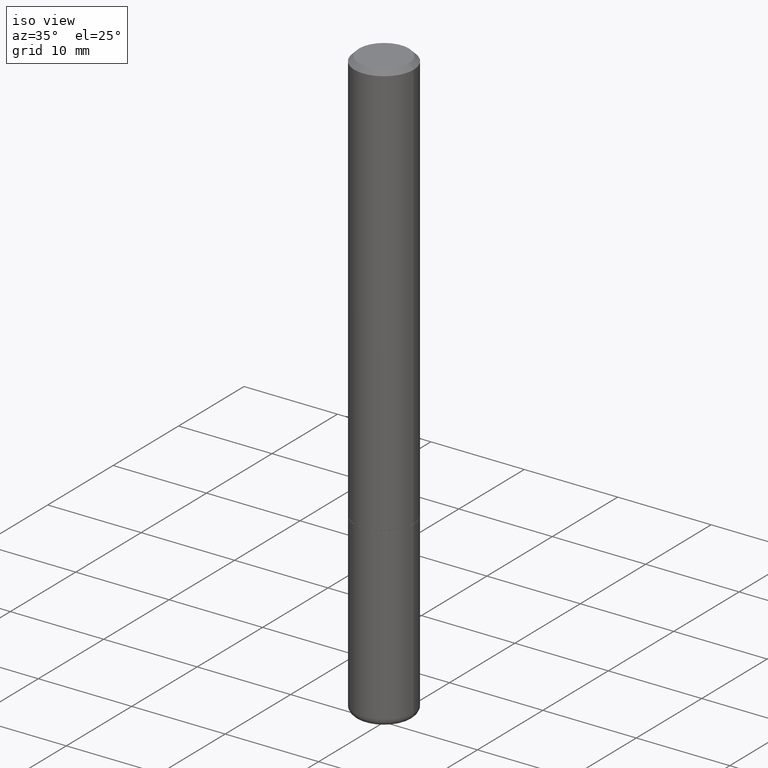
[diagram: clean part render]
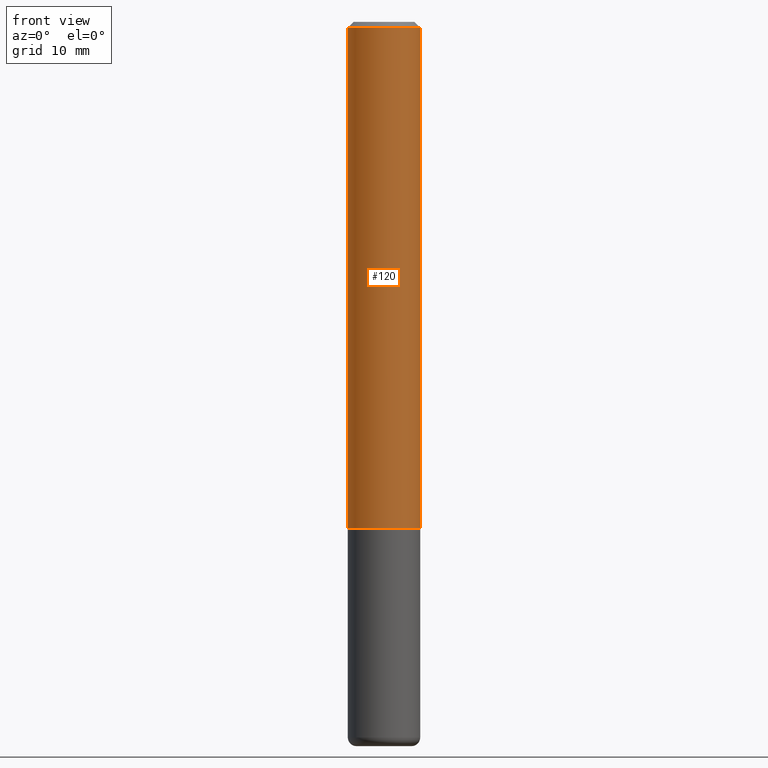
[diagram: tour spotlight — one face highlighted and labeled with its STEP entity id]
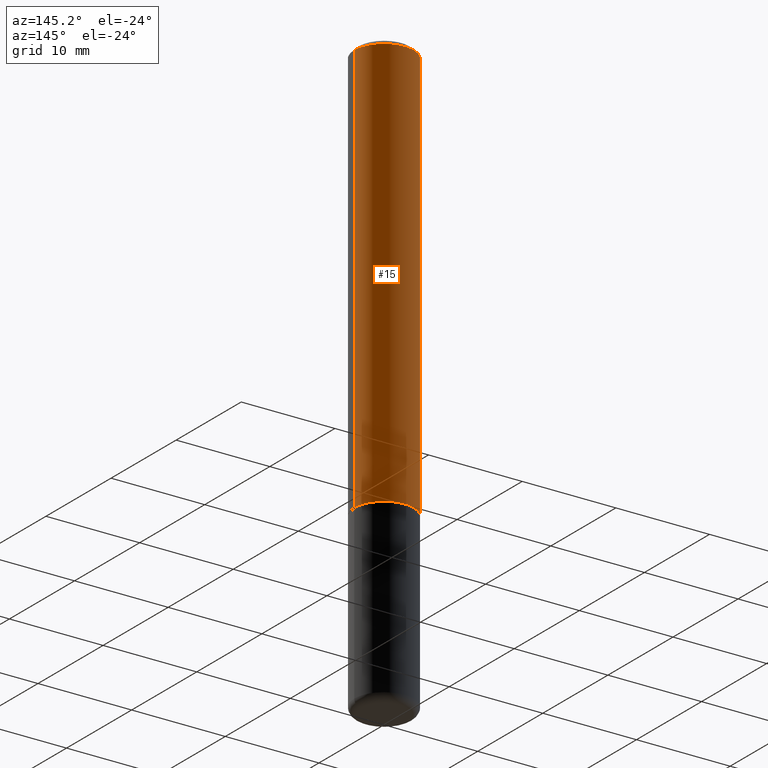
[diagram: tour spotlight — one face highlighted and labeled with its STEP entity id]
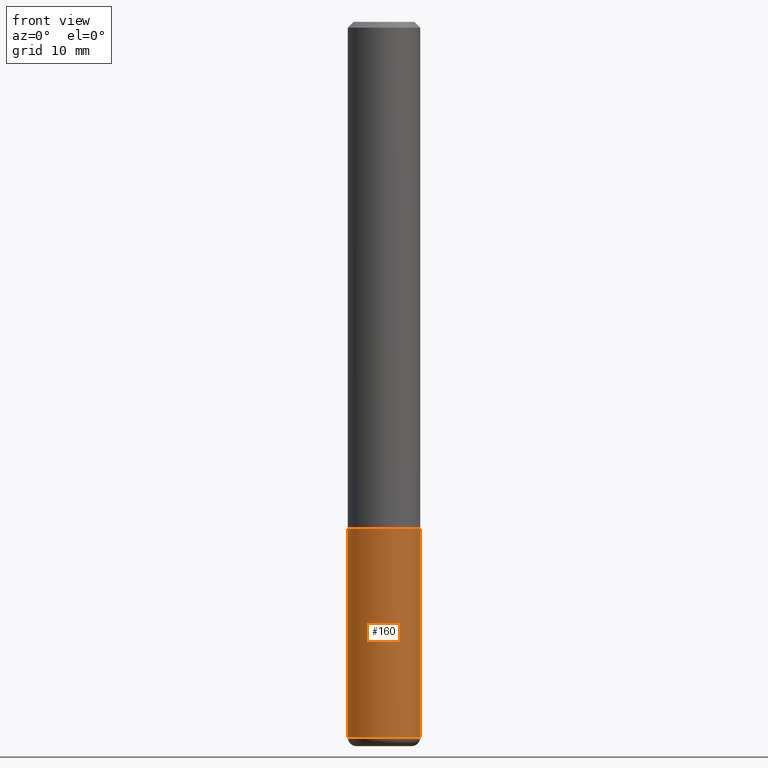
[diagram: tour spotlight — one face highlighted and labeled with its STEP entity id]
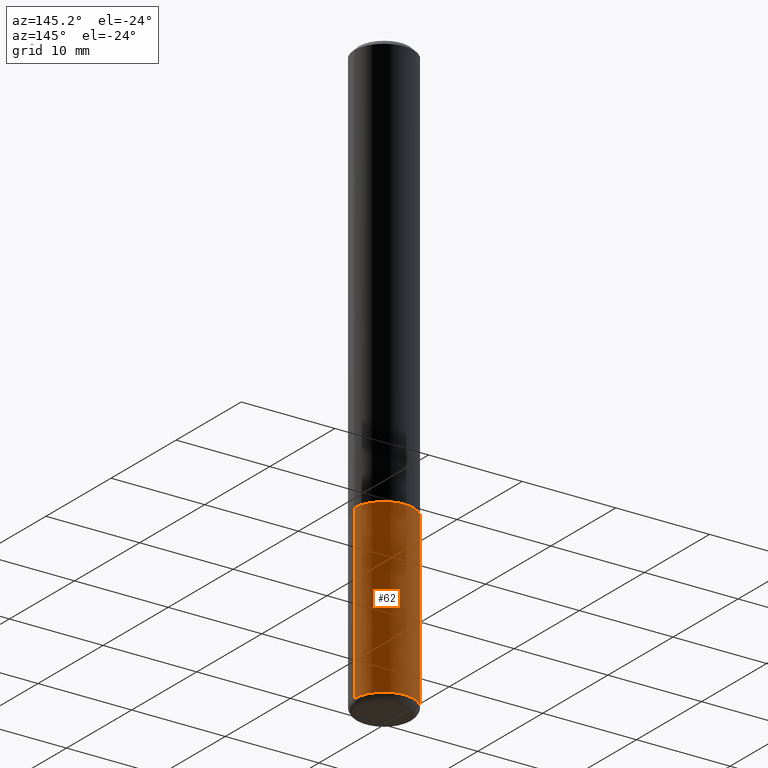
[diagram: tour spotlight — one face highlighted and labeled with its STEP entity id]
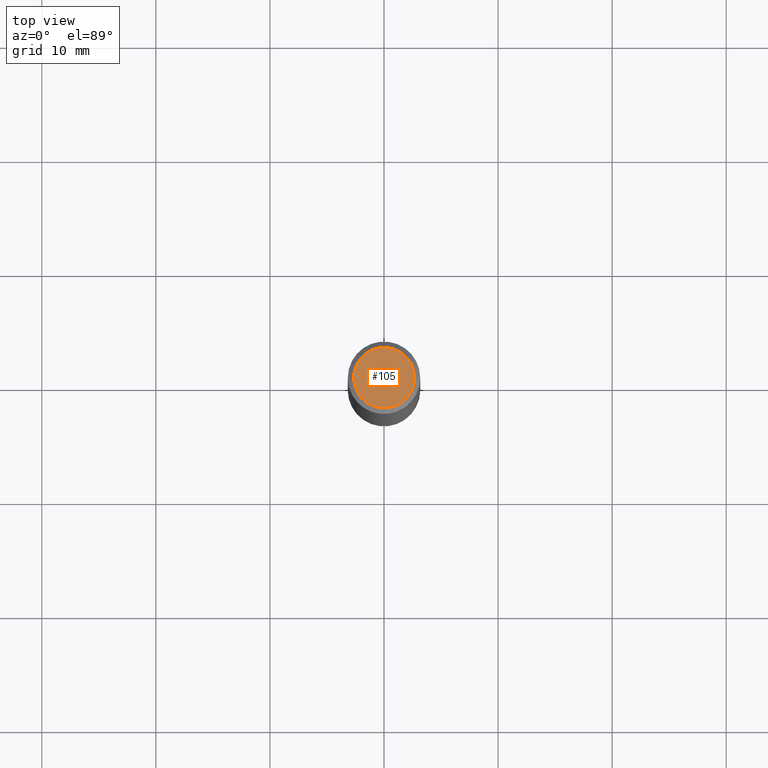
[diagram: tour spotlight — one face highlighted and labeled with its STEP entity id]
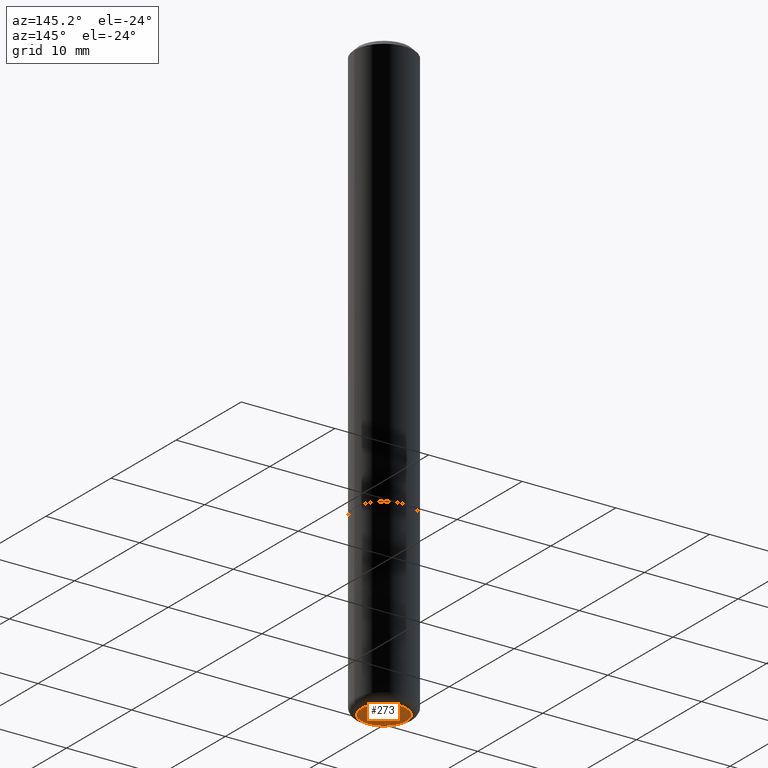
[diagram: tour spotlight — one face highlighted and labeled with its STEP entity id]
A machine part: a face-by-face anatomy tour. The part has 14 B-rep faces; the first image is the clean iso view, then the 6 largest visible faces are spotlighted one at a time (largest first), each with its STEP entity span.

Face 1 — front view, entity #120. In plain terms, the highlighted cylindrical surface (edge-blend (fillet) strip) has radius 3.175 mm, axis along (-0, 0, 1).
Definition (entity closure, byte-faithful):
#12 = LINE ( 'NONE', #378, #349 ) ;
#25 = CARTESIAN_POINT ( 'NONE',  ( 4.277124942017804562E-29, -6.106600861636661664E-15, -1.749000000000000110 ) ) ;
#58 = CARTESIAN_POINT ( 'NONE',  ( 4.890937612370288923E-31, -6.982962677686312563E-17, -0.02000000000000006287 ) ) ;
#59 = CARTESIAN_POINT ( 'NONE',  ( -0.1250000000000001943, -2.200036824506633304E-15, -1.749000000000000110 ) ) ;
#66 = EDGE_CURVE ( 'NONE', #366, #265, #394, .T. ) ;
#72 = CARTESIAN_POINT ( 'NONE',  ( 0.1250000000000000555, -8.728703347107838319E-16, 6.095220969744923244E-30 ) ) ;
#85 = CYLINDRICAL_SURFACE ( 'NONE', #180, 0.1250000000000000555 ) ;
#89 = CARTESIAN_POINT ( 'NONE',  ( 0.1250000000000001943, -6.979471196347446580E-15, -1.749000000000000110 ) ) ;
#99 = EDGE_CURVE ( 'NONE', #139, #366, #12, .T. ) ;
#115 = DIRECTION ( 'NONE',  ( -2.445468806185136877E-29, 3.491481338843145188E-15, 1.000000000000000000 ) ) ;
#120 = ADVANCED_FACE ( 'NONE', ( #281 ), #85, .T. ) ;
#137 = EDGE_LOOP ( 'NONE', ( #165, #335, #307, #158 ) ) ;
#139 = VERTEX_POINT ( 'NONE', #59 ) ;
#150 = DIRECTION ( 'NONE',  ( 1.000000000000000000, -6.982962677686267499E-15, 0.000000000000000000 ) ) ;
#154 = DIRECTION ( 'NONE',  ( -2.445468806185136597E-29, 3.491481338843145583E-15, 1.000000000000000000 ) ) ;
#158 = ORIENTED_EDGE ( 'NONE', *, *, #66, .F. ) ;
#165 = ORIENTED_EDGE ( 'NONE', *, *, #99, .F. ) ;
#179 = EDGE_CURVE ( 'NONE', #139, #381, #318, .T. ) ;
#180 = AXIS2_PLACEMENT_3D ( 'NONE', #338, #412, #279 ) ;
#188 = DIRECTION ( 'NONE',  ( -2.445468806185136877E-29, 3.491481338843145188E-15, 1.000000000000000000 ) ) ;
#200 = LINE ( 'NONE', #72, #277 ) ;
#213 = DIRECTION ( 'NONE',  ( 1.000000000000000000, -6.982962677686267499E-15, 0.000000000000000000 ) ) ;
#225 = AXIS2_PLACEMENT_3D ( 'NONE', #58, #372, #150 ) ;
#234 = EDGE_CURVE ( 'NONE', #381, #265, #200, .T. ) ;
#248 = CARTESIAN_POINT ( 'NONE',  ( 0.1249999999999999584, -9.273918764983043491E-16, -0.02000000000000006287 ) ) ;
#265 = VERTEX_POINT ( 'NONE', #248 ) ;
#277 = VECTOR ( 'NONE', #115, 39.37007874015748143 ) ;
#279 = DIRECTION ( 'NONE',  ( 1.000000000000000000, -6.982962677686267499E-15, 4.876176775795936353E-29 ) ) ;
#281 = FACE_OUTER_BOUND ( 'NONE', #137, .T. ) ;
#307 = ORIENTED_EDGE ( 'NONE', *, *, #234, .T. ) ;
#318 = CIRCLE ( 'NONE', #371, 0.1250000000000001943 ) ;
#335 = ORIENTED_EDGE ( 'NONE', *, *, #179, .T. ) ;
#338 = CARTESIAN_POINT ( 'NONE',  ( 0.000000000000000000, 0.000000000000000000, 0.000000000000000000 ) ) ;
#349 = VECTOR ( 'NONE', #188, 39.37007874015748143 ) ;
#366 = VERTEX_POINT ( 'NONE', #407 ) ;
#371 = AXIS2_PLACEMENT_3D ( 'NONE', #25, #154, #213 ) ;
#372 = DIRECTION ( 'NONE',  ( -2.445468806185136597E-29, 3.491481338843145583E-15, 1.000000000000000000 ) ) ;
#378 = CARTESIAN_POINT ( 'NONE',  ( -0.1250000000000000555, 8.881784197001256268E-16, -6.148668862818635730E-30 ) ) ;
#381 = VERTEX_POINT ( 'NONE', #89 ) ;
#394 = CIRCLE ( 'NONE', #225, 0.1249999999999999584 ) ;
#407 = CARTESIAN_POINT ( 'NONE',  ( -0.1249999999999999584, 8.030407079339200406E-16, -0.02000000000000006287 ) ) ;
#412 = DIRECTION ( 'NONE',  ( -2.445468806185136597E-29, 3.491481338843145583E-15, 1.000000000000000000 ) ) ;

Face 2 — auxiliary view, entity #15. In plain terms, the highlighted cylindrical surface (edge-blend (fillet) strip) has radius 3.175 mm, axis along (-0, 0, 1).
Definition (entity closure, byte-faithful):
#12 = LINE ( 'NONE', #378, #349 ) ;
#15 = ADVANCED_FACE ( 'NONE', ( #76 ), #238, .T. ) ;
#59 = CARTESIAN_POINT ( 'NONE',  ( -0.1250000000000001943, -2.200036824506633304E-15, -1.749000000000000110 ) ) ;
#63 = EDGE_CURVE ( 'NONE', #381, #139, #113, .T. ) ;
#72 = CARTESIAN_POINT ( 'NONE',  ( 0.1250000000000000555, -8.728703347107838319E-16, 6.095220969744923244E-30 ) ) ;
#74 = ORIENTED_EDGE ( 'NONE', *, *, #99, .T. ) ;
#76 = FACE_OUTER_BOUND ( 'NONE', #193, .T. ) ;
#86 = DIRECTION ( 'NONE',  ( 1.000000000000000000, -6.982962677686267499E-15, 0.000000000000000000 ) ) ;
#89 = CARTESIAN_POINT ( 'NONE',  ( 0.1250000000000001943, -6.979471196347446580E-15, -1.749000000000000110 ) ) ;
#93 = CARTESIAN_POINT ( 'NONE',  ( 4.890937612370288923E-31, -6.982962677686312563E-17, -0.02000000000000006287 ) ) ;
#99 = EDGE_CURVE ( 'NONE', #139, #366, #12, .T. ) ;
#107 = AXIS2_PLACEMENT_3D ( 'NONE', #93, #190, #282 ) ;
#113 = CIRCLE ( 'NONE', #245, 0.1250000000000001943 ) ;
#115 = DIRECTION ( 'NONE',  ( -2.445468806185136877E-29, 3.491481338843145188E-15, 1.000000000000000000 ) ) ;
#118 = CARTESIAN_POINT ( 'NONE',  ( 4.277124942017804562E-29, -6.106600861636661664E-15, -1.749000000000000110 ) ) ;
#133 = ORIENTED_EDGE ( 'NONE', *, *, #234, .F. ) ;
#139 = VERTEX_POINT ( 'NONE', #59 ) ;
#169 = ORIENTED_EDGE ( 'NONE', *, *, #355, .F. ) ;
#188 = DIRECTION ( 'NONE',  ( -2.445468806185136877E-29, 3.491481338843145188E-15, 1.000000000000000000 ) ) ;
#190 = DIRECTION ( 'NONE',  ( -2.445468806185136597E-29, 3.491481338843145583E-15, 1.000000000000000000 ) ) ;
#193 = EDGE_LOOP ( 'NONE', ( #362, #74, #169, #133 ) ) ;
#200 = LINE ( 'NONE', #72, #277 ) ;
#204 = DIRECTION ( 'NONE',  ( -2.445468806185136597E-29, 3.491481338843145583E-15, 1.000000000000000000 ) ) ;
#221 = DIRECTION ( 'NONE',  ( -2.445468806185136597E-29, 3.491481338843145583E-15, 1.000000000000000000 ) ) ;
#234 = EDGE_CURVE ( 'NONE', #381, #265, #200, .T. ) ;
#238 = CYLINDRICAL_SURFACE ( 'NONE', #363, 0.1250000000000000555 ) ;
#245 = AXIS2_PLACEMENT_3D ( 'NONE', #118, #221, #86 ) ;
#248 = CARTESIAN_POINT ( 'NONE',  ( 0.1249999999999999584, -9.273918764983043491E-16, -0.02000000000000006287 ) ) ;
#265 = VERTEX_POINT ( 'NONE', #248 ) ;
#268 = DIRECTION ( 'NONE',  ( 1.000000000000000000, -6.982962677686267499E-15, 4.876176775795936353E-29 ) ) ;
#275 = CARTESIAN_POINT ( 'NONE',  ( 0.000000000000000000, 0.000000000000000000, 0.000000000000000000 ) ) ;
#277 = VECTOR ( 'NONE', #115, 39.37007874015748143 ) ;
#282 = DIRECTION ( 'NONE',  ( 1.000000000000000000, -6.982962677686267499E-15, 0.000000000000000000 ) ) ;
#291 = CIRCLE ( 'NONE', #107, 0.1249999999999999584 ) ;
#349 = VECTOR ( 'NONE', #188, 39.37007874015748143 ) ;
#355 = EDGE_CURVE ( 'NONE', #265, #366, #291, .T. ) ;
#362 = ORIENTED_EDGE ( 'NONE', *, *, #63, .T. ) ;
#363 = AXIS2_PLACEMENT_3D ( 'NONE', #275, #204, #268 ) ;
#366 = VERTEX_POINT ( 'NONE', #407 ) ;
#378 = CARTESIAN_POINT ( 'NONE',  ( -0.1250000000000000555, 8.881784197001256268E-16, -6.148668862818635730E-30 ) ) ;
#381 = VERTEX_POINT ( 'NONE', #89 ) ;
#407 = CARTESIAN_POINT ( 'NONE',  ( -0.1249999999999999584, 8.030407079339200406E-16, -0.02000000000000006287 ) ) ;

Face 3 — front view, entity #160. In plain terms, the highlighted cylindrical surface (edge-blend (fillet) strip) has radius 3.175 mm, axis along (-0, 0, 1).
Definition (entity closure, byte-faithful):
#10 = EDGE_LOOP ( 'NONE', ( #18, #191, #299, #162 ) ) ;
#13 = CIRCLE ( 'NONE', #297, 0.1250000000000000000 ) ;
#18 = ORIENTED_EDGE ( 'NONE', *, *, #352, .F. ) ;
#21 = DIRECTION ( 'NONE',  ( 1.000000000000000000, -6.982962677686266711E-15, 4.876176775795935793E-29 ) ) ;
#27 = DIRECTION ( 'NONE',  ( 1.000000000000000000, -6.982962677686270655E-15, 0.000000000000000000 ) ) ;
#28 = CARTESIAN_POINT ( 'NONE',  ( 0.1250000000000000000, -6.982962677686288010E-15, -1.750000000000000222 ) ) ;
#30 = DIRECTION ( 'NONE',  ( -2.445468806185136597E-29, 3.491481338843145583E-15, 1.000000000000000000 ) ) ;
#44 = CIRCLE ( 'NONE', #397, 0.1250000000000000000 ) ;
#50 = VECTOR ( 'NONE', #300, 39.37007874015748143 ) ;
#57 = VECTOR ( 'NONE', #351, 39.37007874015748143 ) ;
#67 = VERTEX_POINT ( 'NONE', #223 ) ;
#68 = AXIS2_PLACEMENT_3D ( 'NONE', #222, #214, #21 ) ;
#103 = CARTESIAN_POINT ( 'NONE',  ( -0.1250000000000000000, -6.478847205258913284E-15, -1.750000000000000222 ) ) ;
#131 = EDGE_CURVE ( 'NONE', #236, #197, #13, .T. ) ;
#160 = ADVANCED_FACE ( 'NONE', ( #310 ), #255, .T. ) ;
#162 = ORIENTED_EDGE ( 'NONE', *, *, #131, .F. ) ;
#185 = CARTESIAN_POINT ( 'NONE',  ( 4.279570410823989044E-29, -6.110092342975505460E-15, -1.750000000000000222 ) ) ;
#186 = LINE ( 'NONE', #383, #57 ) ;
#191 = ORIENTED_EDGE ( 'NONE', *, *, #401, .T. ) ;
#197 = VERTEX_POINT ( 'NONE', #28 ) ;
#214 = DIRECTION ( 'NONE',  ( -2.445468806185136597E-29, 3.491481338843145583E-15, 1.000000000000000000 ) ) ;
#222 = CARTESIAN_POINT ( 'NONE',  ( 0.000000000000000000, 0.000000000000000000, 0.000000000000000000 ) ) ;
#223 = CARTESIAN_POINT ( 'NONE',  ( -0.1249999999999999861, -7.735780487242444763E-15, -2.470000000000000195 ) ) ;
#236 = VERTEX_POINT ( 'NONE', #103 ) ;
#255 = CYLINDRICAL_SURFACE ( 'NONE', #68, 0.1250000000000000000 ) ;
#266 = CARTESIAN_POINT ( 'NONE',  ( 0.1250000000000000000, -8.728703347107833388E-16, 6.095220969744919741E-30 ) ) ;
#284 = EDGE_CURVE ( 'NONE', #398, #197, #339, .T. ) ;
#297 = AXIS2_PLACEMENT_3D ( 'NONE', #185, #319, #379 ) ;
#299 = ORIENTED_EDGE ( 'NONE', *, *, #284, .T. ) ;
#300 = DIRECTION ( 'NONE',  ( -2.445468806185136877E-29, 3.491481338843145188E-15, 1.000000000000000000 ) ) ;
#310 = FACE_OUTER_BOUND ( 'NONE', #10, .T. ) ;
#319 = DIRECTION ( 'NONE',  ( -2.445468806185136597E-29, 3.491481338843145583E-15, 1.000000000000000000 ) ) ;
#339 = LINE ( 'NONE', #266, #50 ) ;
#351 = DIRECTION ( 'NONE',  ( -2.445468806185136877E-29, 3.491481338843145188E-15, 1.000000000000000000 ) ) ;
#352 = EDGE_CURVE ( 'NONE', #67, #236, #186, .T. ) ;
#375 = CARTESIAN_POINT ( 'NONE',  ( 6.040307951277287977E-29, -8.623958906942569995E-15, -2.470000000000000195 ) ) ;
#379 = DIRECTION ( 'NONE',  ( 1.000000000000000000, -6.982962677686262766E-15, 0.000000000000000000 ) ) ;
#383 = CARTESIAN_POINT ( 'NONE',  ( -0.1250000000000000000, 8.881784197001252323E-16, -6.148668862818632227E-30 ) ) ;
#397 = AXIS2_PLACEMENT_3D ( 'NONE', #375, #30, #27 ) ;
#398 = VERTEX_POINT ( 'NONE', #416 ) ;
#401 = EDGE_CURVE ( 'NONE', #67, #398, #44, .T. ) ;
#416 = CARTESIAN_POINT ( 'NONE',  ( 0.1249999999999999861, -9.496829241653354912E-15, -2.470000000000000195 ) ) ;

Face 4 — auxiliary view, entity #62. In plain terms, the highlighted cylindrical surface (edge-blend (fillet) strip) has radius 3.175 mm, axis along (-0, 0, 1).
Definition (entity closure, byte-faithful):
#28 = CARTESIAN_POINT ( 'NONE',  ( 0.1250000000000000000, -6.982962677686288010E-15, -1.750000000000000222 ) ) ;
#31 = AXIS2_PLACEMENT_3D ( 'NONE', #152, #312, #408 ) ;
#50 = VECTOR ( 'NONE', #300, 39.37007874015748143 ) ;
#57 = VECTOR ( 'NONE', #351, 39.37007874015748143 ) ;
#62 = ADVANCED_FACE ( 'NONE', ( #81 ), #209, .T. ) ;
#67 = VERTEX_POINT ( 'NONE', #223 ) ;
#81 = FACE_OUTER_BOUND ( 'NONE', #270, .T. ) ;
#103 = CARTESIAN_POINT ( 'NONE',  ( -0.1250000000000000000, -6.478847205258913284E-15, -1.750000000000000222 ) ) ;
#117 = CARTESIAN_POINT ( 'NONE',  ( 4.279570410823989044E-29, -6.110092342975505460E-15, -1.750000000000000222 ) ) ;
#135 = ORIENTED_EDGE ( 'NONE', *, *, #352, .T. ) ;
#136 = CARTESIAN_POINT ( 'NONE',  ( 6.040307951277287977E-29, -8.623958906942569995E-15, -2.470000000000000195 ) ) ;
#152 = CARTESIAN_POINT ( 'NONE',  ( 0.000000000000000000, 0.000000000000000000, 0.000000000000000000 ) ) ;
#186 = LINE ( 'NONE', #383, #57 ) ;
#197 = VERTEX_POINT ( 'NONE', #28 ) ;
#203 = AXIS2_PLACEMENT_3D ( 'NONE', #136, #311, #233 ) ;
#209 = CYLINDRICAL_SURFACE ( 'NONE', #31, 0.1250000000000000000 ) ;
#218 = CIRCLE ( 'NONE', #304, 0.1250000000000000000 ) ;
#223 = CARTESIAN_POINT ( 'NONE',  ( -0.1249999999999999861, -7.735780487242444763E-15, -2.470000000000000195 ) ) ;
#233 = DIRECTION ( 'NONE',  ( 1.000000000000000000, -6.982962677686270655E-15, 0.000000000000000000 ) ) ;
#236 = VERTEX_POINT ( 'NONE', #103 ) ;
#247 = EDGE_CURVE ( 'NONE', #398, #67, #313, .T. ) ;
#249 = DIRECTION ( 'NONE',  ( 1.000000000000000000, -6.982962677686262766E-15, 0.000000000000000000 ) ) ;
#261 = ORIENTED_EDGE ( 'NONE', *, *, #370, .F. ) ;
#266 = CARTESIAN_POINT ( 'NONE',  ( 0.1250000000000000000, -8.728703347107833388E-16, 6.095220969744919741E-30 ) ) ;
#270 = EDGE_LOOP ( 'NONE', ( #295, #135, #261, #390 ) ) ;
#284 = EDGE_CURVE ( 'NONE', #398, #197, #339, .T. ) ;
#295 = ORIENTED_EDGE ( 'NONE', *, *, #247, .T. ) ;
#300 = DIRECTION ( 'NONE',  ( -2.445468806185136877E-29, 3.491481338843145188E-15, 1.000000000000000000 ) ) ;
#304 = AXIS2_PLACEMENT_3D ( 'NONE', #117, #315, #249 ) ;
#311 = DIRECTION ( 'NONE',  ( -2.445468806185136597E-29, 3.491481338843145583E-15, 1.000000000000000000 ) ) ;
#312 = DIRECTION ( 'NONE',  ( -2.445468806185136597E-29, 3.491481338843145583E-15, 1.000000000000000000 ) ) ;
#313 = CIRCLE ( 'NONE', #203, 0.1250000000000000000 ) ;
#315 = DIRECTION ( 'NONE',  ( -2.445468806185136597E-29, 3.491481338843145583E-15, 1.000000000000000000 ) ) ;
#339 = LINE ( 'NONE', #266, #50 ) ;
#351 = DIRECTION ( 'NONE',  ( -2.445468806185136877E-29, 3.491481338843145188E-15, 1.000000000000000000 ) ) ;
#352 = EDGE_CURVE ( 'NONE', #67, #236, #186, .T. ) ;
#370 = EDGE_CURVE ( 'NONE', #197, #236, #218, .T. ) ;
#383 = CARTESIAN_POINT ( 'NONE',  ( -0.1250000000000000000, 8.881784197001252323E-16, -6.148668862818632227E-30 ) ) ;
#390 = ORIENTED_EDGE ( 'NONE', *, *, #284, .F. ) ;
#398 = VERTEX_POINT ( 'NONE', #416 ) ;
#408 = DIRECTION ( 'NONE',  ( 1.000000000000000000, -6.982962677686266711E-15, 4.876176775795935793E-29 ) ) ;
#416 = CARTESIAN_POINT ( 'NONE',  ( 0.1249999999999999861, -9.496829241653354912E-15, -2.470000000000000195 ) ) ;

Face 5 — top view, entity #105. In plain terms, the highlighted planar face has unit normal (0, -0, -1).
Definition (entity closure, byte-faithful):
#14 = FACE_OUTER_BOUND ( 'NONE', #46, .T. ) ;
#26 = CARTESIAN_POINT ( 'NONE',  ( 1.252621697202263706E-45, -1.788411804456536750E-31, -5.122214988120493535E-17 ) ) ;
#46 = EDGE_LOOP ( 'NONE', ( #359, #323 ) ) ;
#97 = VERTEX_POINT ( 'NONE', #360 ) ;
#105 = ADVANCED_FACE ( 'NONE', ( #14 ), #258, .F. ) ;
#123 = CARTESIAN_POINT ( 'NONE',  ( 1.252621697202263706E-45, -1.788411804456536750E-31, -5.122214988120493535E-17 ) ) ;
#127 = CIRCLE ( 'NONE', #237, 0.1050000000000000377 ) ;
#130 = CARTESIAN_POINT ( 'NONE',  ( 7.332110811570581229E-16, 0.1050000000000000377, -3.922166155191328542E-16 ) ) ;
#143 = CIRCLE ( 'NONE', #384, 0.1050000000000000377 ) ;
#149 = DIRECTION ( 'NONE',  ( 1.000000000000000000, -6.982962677686267499E-15, 4.874400871621236533E-29 ) ) ;
#217 = DIRECTION ( 'NONE',  ( 1.000000000000000000, -6.982962677686267499E-15, 4.874400871621236533E-29 ) ) ;
#220 = DIRECTION ( 'NONE',  ( -2.445468806185136597E-29, 3.491481338843145583E-15, 1.000000000000000000 ) ) ;
#237 = AXIS2_PLACEMENT_3D ( 'NONE', #26, #220, #149 ) ;
#258 = PLANE ( 'NONE',  #267 ) ;
#267 = AXIS2_PLACEMENT_3D ( 'NONE', #130, #341, #346 ) ;
#287 = CARTESIAN_POINT ( 'NONE',  ( 0.1050000000000000377, -8.238720831321576644E-16, -5.122214988119949344E-17 ) ) ;
#289 = EDGE_CURVE ( 'NONE', #393, #97, #143, .T. ) ;
#323 = ORIENTED_EDGE ( 'NONE', *, *, #289, .T. ) ;
#331 = EDGE_CURVE ( 'NONE', #97, #393, #127, .T. ) ;
#341 = DIRECTION ( 'NONE',  ( 2.438088387897960049E-29, -3.491481338843145188E-15, -1.000000000000000000 ) ) ;
#346 = DIRECTION ( 'NONE',  ( -1.000000000000000000, 6.982962677686265922E-15, -4.876176775795935793E-29 ) ) ;
#359 = ORIENTED_EDGE ( 'NONE', *, *, #331, .T. ) ;
#360 = CARTESIAN_POINT ( 'NONE',  ( -0.1050000000000000377, 7.681258945454890818E-16, -5.122214988121018004E-17 ) ) ;
#384 = AXIS2_PLACEMENT_3D ( 'NONE', #123, #411, #217 ) ;
#393 = VERTEX_POINT ( 'NONE', #287 ) ;
#411 = DIRECTION ( 'NONE',  ( -2.445468806185136597E-29, 3.491481338843145583E-15, 1.000000000000000000 ) ) ;

Face 6 — auxiliary view, entity #273. In plain terms, the highlighted planar face has unit normal (0, -0, -1).
Definition (entity closure, byte-faithful):
#8 = EDGE_LOOP ( 'NONE', ( #301, #102 ) ) ;
#83 = CARTESIAN_POINT ( 'NONE',  ( 6.113672015462842613E-29, -8.728703347107864943E-15, -2.500000000000000000 ) ) ;
#90 = DIRECTION ( 'NONE',  ( 1.000000000000000000, -6.982962677686273021E-15, 0.000000000000000000 ) ) ;
#94 = AXIS2_PLACEMENT_3D ( 'NONE', #83, #399, #134 ) ;
#102 = ORIENTED_EDGE ( 'NONE', *, *, #194, .F. ) ;
#116 = CARTESIAN_POINT ( 'NONE',  ( -0.09499999999999998723, -7.894734117689107359E-15, -2.500000000000000000 ) ) ;
#119 = CARTESIAN_POINT ( 'NONE',  ( 6.113672015462842613E-29, -8.728703347107864943E-15, -2.500000000000000000 ) ) ;
#124 = DIRECTION ( 'NONE',  ( -2.445468806185136597E-29, 3.491481338843145583E-15, 1.000000000000000000 ) ) ;
#134 = DIRECTION ( 'NONE',  ( -1.000000000000000000, 6.982962677686265922E-15, -4.876176775795935793E-29 ) ) ;
#164 = AXIS2_PLACEMENT_3D ( 'NONE', #177, #182, #415 ) ;
#166 = PLANE ( 'NONE',  #94 ) ;
#177 = CARTESIAN_POINT ( 'NONE',  ( 6.113672015462842613E-29, -8.728703347107864943E-15, -2.500000000000000000 ) ) ;
#182 = DIRECTION ( 'NONE',  ( -2.445468806185136597E-29, 3.491481338843145583E-15, 1.000000000000000000 ) ) ;
#184 = CIRCLE ( 'NONE', #164, 0.09499999999999998723 ) ;
#194 = EDGE_CURVE ( 'NONE', #199, #229, #184, .T. ) ;
#199 = VERTEX_POINT ( 'NONE', #116 ) ;
#229 = VERTEX_POINT ( 'NONE', #306 ) ;
#239 = AXIS2_PLACEMENT_3D ( 'NONE', #119, #124, #90 ) ;
#273 = ADVANCED_FACE ( 'NONE', ( #373 ), #166, .T. ) ;
#301 = ORIENTED_EDGE ( 'NONE', *, *, #376, .F. ) ;
#306 = CARTESIAN_POINT ( 'NONE',  ( 0.09499999999999998723, -9.392084801488059965E-15, -2.500000000000000000 ) ) ;
#373 = FACE_OUTER_BOUND ( 'NONE', #8, .T. ) ;
#376 = EDGE_CURVE ( 'NONE', #229, #199, #389, .T. ) ;
#389 = CIRCLE ( 'NONE', #239, 0.09499999999999998723 ) ;
#399 = DIRECTION ( 'NONE',  ( 2.438088387897960049E-29, -3.491481338843145188E-15, -1.000000000000000000 ) ) ;
#415 = DIRECTION ( 'NONE',  ( 1.000000000000000000, -6.982962677686273021E-15, 0.000000000000000000 ) ) ;